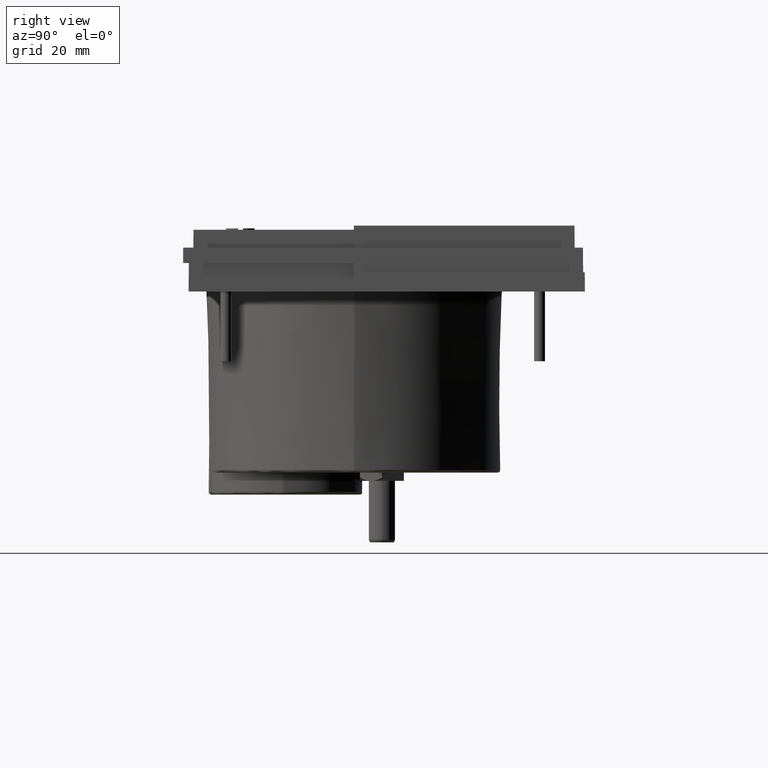
[diagram: clean part render]
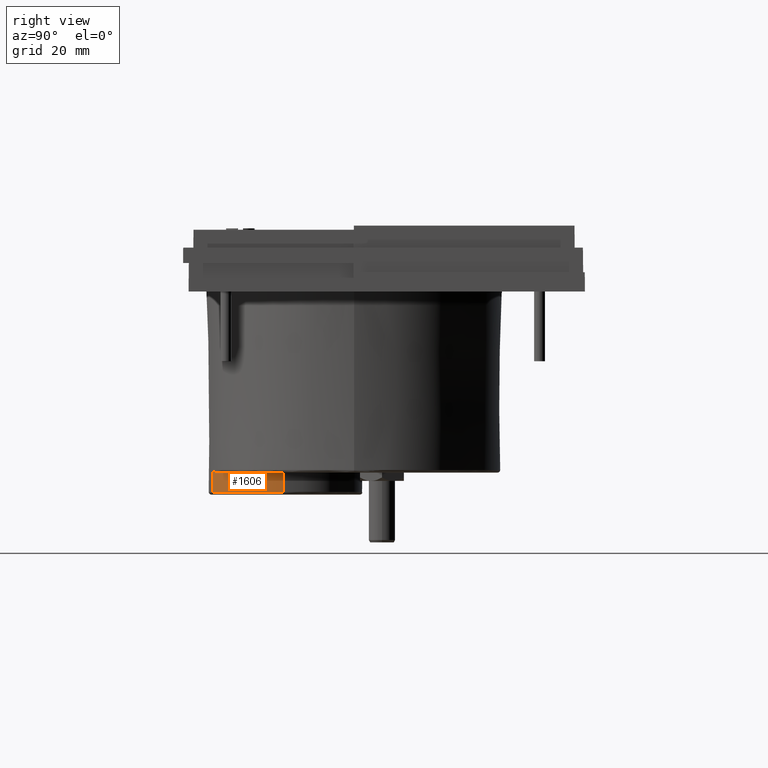
[diagram: same view with one face highlighted and labeled with its STEP entity id]
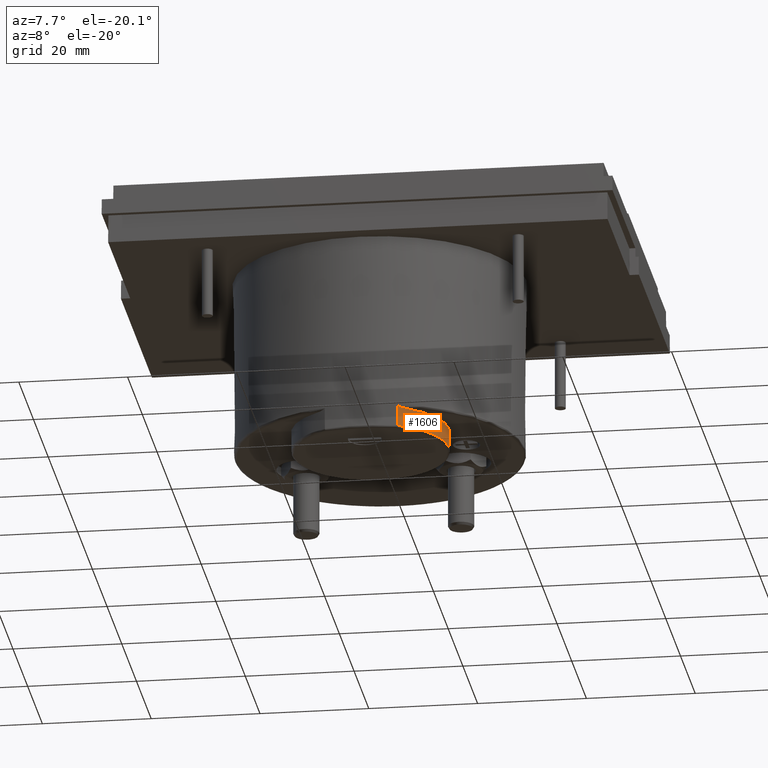
[diagram: same view with one face highlighted and labeled with its STEP entity id]
A machine part, right view. The second image highlights one B-rep face of the part: STEP entity #1606.
A second angle (auxiliary view) of the same face is appended — the face is thin or edge-on in the first view.
In plain terms, the highlighted conical surface has half-angle 0.5 deg.
Its self-contained STEP definition (entity closure, byte-faithful):
#8 = DIRECTION ( 'NONE',  ( 0.008726535488402624441, 0.000000000000000000, 0.9999619230642582401 ) ) ;
#118 = ORIENTED_EDGE ( 'NONE', *, *, #3908, .F. ) ;
#202 = CARTESIAN_POINT ( 'NONE',  ( 0.8608815693933723479, -0.6840602980661790733, -1.127779457429878729 ) ) ;
#256 = CARTESIAN_POINT ( 'NONE',  ( 0.8991353266383411702, -0.6592726747793526965, -1.131889763779568847 ) ) ;
#259 = CARTESIAN_POINT ( 'NONE',  ( 0.5708661417322835607, -0.1929133858267716994, -1.131889763779652114 ) ) ;
#319 = DIRECTION ( 'NONE',  ( 1.000000000000000000, 0.000000000000000000, 0.000000000000000000 ) ) ;
#543 = CARTESIAN_POINT ( 'NONE',  ( 0.8443042559220617083, -0.6934982280822546974, -1.122551900248083045 ) ) ;
#623 = B_SPLINE_CURVE_WITH_KNOTS ( 'NONE', 3,
 ( #4866, #1310, #2923, #939, #4116, #543, #2142, #4657, #202, #3864, #2636, #2661 ),
 .UNSPECIFIED., .F., .F.,
 ( 4, 2, 2, 2, 2, 4 ),
 ( 7.408711319456051119E-17, 0.0001259656889615376593, 0.0002519313779230012676, 0.0005038627558459240390, 0.001007725511691761125, 0.002015451023383444187 ),
 .UNSPECIFIED. ) ;
#762 = VECTOR ( 'NONE', #3568, 39.37007874015748143 ) ;
#803 = CIRCLE ( 'NONE', #977, 0.5691043561022901542 ) ;
#939 = CARTESIAN_POINT ( 'NONE',  ( 0.8390580828091876997, -0.6963493052674292194, -1.119730743330940692 ) ) ;
#977 = AXIS2_PLACEMENT_3D ( 'NONE', #2582, #3882, #2632 ) ;
#1080 = CARTESIAN_POINT ( 'NONE',  ( 0.8340786367696911840, -0.6974913770962225534, -1.269856821556850424 ) ) ;
#1081 = EDGE_CURVE ( 'NONE', #3676, #4647, #803, .T. ) ;
#1185 = CARTESIAN_POINT ( 'NONE',  ( 0.5708661417322835607, -0.1929133858267716994, -1.114592628773243721 ) ) ;
#1310 = CARTESIAN_POINT ( 'NONE',  ( 0.8354383334289084972, -0.6982879903240296615, -1.116892272070264536 ) ) ;
#1345 = ORIENTED_EDGE ( 'NONE', *, *, #1905, .T. ) ;
#1599 = AXIS2_PLACEMENT_3D ( 'NONE', #1185, #2360, #319 ) ;
#1606 = ADVANCED_FACE ( 'NONE', ( #3120 ), #3028, .T. ) ;
#1832 = ORIENTED_EDGE ( 'NONE', *, *, #1081, .T. ) ;
#1901 = CARTESIAN_POINT ( 'NONE',  ( 0.8343267414147090832, -0.6981416282036112531, -1.190644223177480310 ) ) ;
#1905 = EDGE_CURVE ( 'NONE', #1964, #3674, #3450, .T. ) ;
#1964 = VERTEX_POINT ( 'NONE', #3113 ) ;
#1975 = LINE ( 'NONE', #1901, #762 ) ;
#2142 = CARTESIAN_POINT ( 'NONE',  ( 0.8470340534005801336, -0.6919877737237254411, -1.123628002255145919 ) ) ;
#2360 = DIRECTION ( 'NONE',  ( -0.000000000000000000, 0.000000000000000000, 1.000000000000000000 ) ) ;
#2582 = CARTESIAN_POINT ( 'NONE',  ( 0.5708661417322835607, -0.1929133858267716994, -1.269856821565061189 ) ) ;
#2632 = DIRECTION ( 'NONE',  ( -1.000000000000000000, 0.000000000000000000, -1.440077534658640335E-15 ) ) ;
#2636 = CARTESIAN_POINT ( 'NONE',  ( 0.8883541367756203622, -0.6668615284760139872, -1.131889763776946944 ) ) ;
#2661 = CARTESIAN_POINT ( 'NONE',  ( 0.8991353266383411702, -0.6592726747793526965, -1.131889763779568847 ) ) ;
#2700 = CARTESIAN_POINT ( 'NONE',  ( 0.8345620281719645650, -0.6987583284621595725, -1.115518644833029871 ) ) ;
#2867 = VECTOR ( 'NONE', #8, 39.37007874015748854 ) ;
#2923 = CARTESIAN_POINT ( 'NONE',  ( 0.8365937582739322309, -0.6976723764565563313, -1.117906459662013186 ) ) ;
#3028 = CONICAL_SURFACE ( 'NONE', #1599, 0.5704593261838749596, 0.008726646249999959332 ) ;
#3056 = EDGE_LOOP ( 'NONE', ( #1832, #4222, #1345, #118, #4051 ) ) ;
#3113 = CARTESIAN_POINT ( 'NONE',  ( 1.141174518105971147, -0.1929133858267716994, -1.131889763779652114 ) ) ;
#3120 = FACE_OUTER_BOUND ( 'NONE', #3056, .T. ) ;
#3204 = EDGE_CURVE ( 'NONE', #3676, #4711, #1975, .T. ) ;
#3450 = CIRCLE ( 'NONE', #4101, 0.5703083763736874756 ) ;
#3568 = DIRECTION ( 'NONE',  ( 0.003132114532987604651, -0.008208632100781642141, 0.9999614033639430133 ) ) ;
#3674 = VERTEX_POINT ( 'NONE', #256 ) ;
#3676 = VERTEX_POINT ( 'NONE', #1080 ) ;
#3796 = DIRECTION ( 'NONE',  ( 1.000000000000000000, 0.000000000000000000, 0.000000000000000000 ) ) ;
#3797 = CARTESIAN_POINT ( 'NONE',  ( 1.139970497834573937, -0.1929133858267716994, -1.269856821565061189 ) ) ;
#3864 = CARTESIAN_POINT ( 'NONE',  ( 0.8774320412939671243, -0.6740011524949102162, -1.130911968575057935 ) ) ;
#3882 = DIRECTION ( 'NONE',  ( 0.000000000000000000, 0.000000000000000000, 1.000000000000000000 ) ) ;
#3885 = CARTESIAN_POINT ( 'NONE',  ( 1.141325467916158409, -0.1929133858267716994, -1.114592628773243721 ) ) ;
#3908 = EDGE_CURVE ( 'NONE', #4711, #3674, #623, .T. ) ;
#4051 = ORIENTED_EDGE ( 'NONE', *, *, #3204, .F. ) ;
#4071 = EDGE_CURVE ( 'NONE', #4647, #1964, #5142, .T. ) ;
#4101 = AXIS2_PLACEMENT_3D ( 'NONE', #259, #4231, #3796 ) ;
#4116 = CARTESIAN_POINT ( 'NONE',  ( 0.8403552255828498074, -0.6956488777913579780, -1.120493303637146498 ) ) ;
#4222 = ORIENTED_EDGE ( 'NONE', *, *, #4071, .T. ) ;
#4231 = DIRECTION ( 'NONE',  ( 0.000000000000000000, -0.000000000000000000, -1.000000000000000000 ) ) ;
#4647 = VERTEX_POINT ( 'NONE', #3797 ) ;
#4657 = CARTESIAN_POINT ( 'NONE',  ( 0.8553271443626297987, -0.6873098690607402084, -1.126464211625142875 ) ) ;
#4711 = VERTEX_POINT ( 'NONE', #2700 ) ;
#4866 = CARTESIAN_POINT ( 'NONE',  ( 0.8345620281719645650, -0.6987583284621595725, -1.115518644833029871 ) ) ;
#5142 = LINE ( 'NONE', #3885, #2867 ) ;